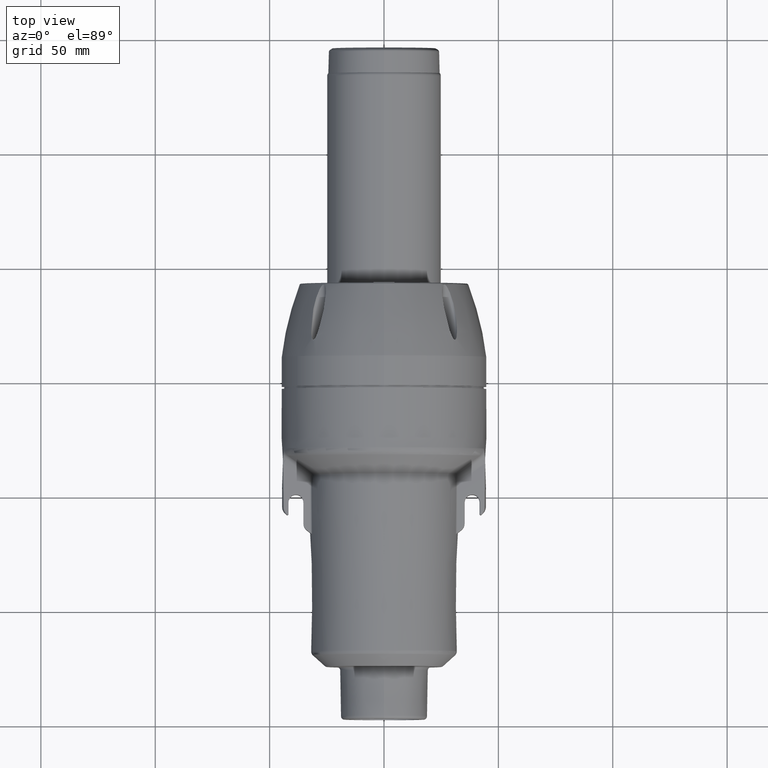
[diagram: clean part render]
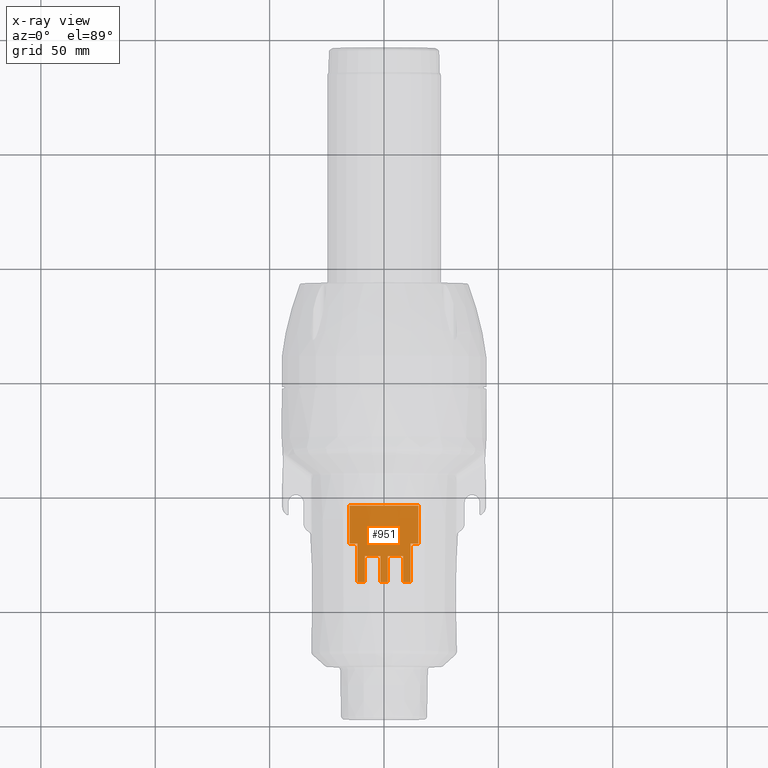
[diagram: x-ray — body ghosted, one internal face saturated and labeled with its STEP entity id]
A machine part, top view, then the same camera in x-ray: the body is ghosted and one INTERNAL B-rep face — a face not visible from any outside direction — is saturated and labeled: STEP entity #951.
In plain terms, the highlighted planar face has unit normal (0, 0, -1).
Its self-contained STEP definition (entity closure, byte-faithful):
#951 = ADVANCED_FACE( '', ( #2759 ), #2760, .F. );
#2759 = FACE_OUTER_BOUND( '', #5583, .T. );
#2760 = PLANE( '', #5584 );
#5583 = EDGE_LOOP( '', ( #13000, #13001, #13002, #13003, #13004, #13005, #13006, #13007, #13008, #13009, #13010, #13011, #13012, #13013, #13014, #13015 ) );
#5584 = AXIS2_PLACEMENT_3D( '', #13016, #13017, #13018 );
#13000 = ORIENTED_EDGE( '', *, *, #21264, .T. );
#13001 = ORIENTED_EDGE( '', *, *, #21265, .T. );
#13002 = ORIENTED_EDGE( '', *, *, #21266, .T. );
#13003 = ORIENTED_EDGE( '', *, *, #21267, .F. );
#13004 = ORIENTED_EDGE( '', *, *, #21268, .T. );
#13005 = ORIENTED_EDGE( '', *, *, #21269, .T. );
#13006 = ORIENTED_EDGE( '', *, *, #21270, .T. );
#13007 = ORIENTED_EDGE( '', *, *, #21271, .F. );
#13008 = ORIENTED_EDGE( '', *, *, #21272, .T. );
#13009 = ORIENTED_EDGE( '', *, *, #21273, .T. );
#13010 = ORIENTED_EDGE( '', *, *, #21274, .T. );
#13011 = ORIENTED_EDGE( '', *, *, #21275, .F. );
#13012 = ORIENTED_EDGE( '', *, *, #21276, .T. );
#13013 = ORIENTED_EDGE( '', *, *, #21277, .F. );
#13014 = ORIENTED_EDGE( '', *, *, #21278, .F. );
#13015 = ORIENTED_EDGE( '', *, *, #21279, .F. );
#13016 = CARTESIAN_POINT( '', ( -15.0000000000010, -66.4999999999880, -28.5499999999874 ) );
#13017 = DIRECTION( '', ( 0.000000000000000, 0.000000000000000, -1.00000000000000 ) );
#13018 = DIRECTION( '', ( 0.000000000000000, -1.00000000000000, 0.000000000000000 ) );
#21264 = EDGE_CURVE( '', #24780, #24781, #24782, .T. );
#21265 = EDGE_CURVE( '', #24781, #24783, #24784, .T. );
#21266 = EDGE_CURVE( '', #24783, #24785, #24786, .T. );
#21267 = EDGE_CURVE( '', #24787, #24785, #24788, .T. );
#21268 = EDGE_CURVE( '', #24787, #24789, #24790, .T. );
#21269 = EDGE_CURVE( '', #24789, #24791, #24792, .T. );
#21270 = EDGE_CURVE( '', #24791, #24793, #24794, .T. );
#21271 = EDGE_CURVE( '', #24795, #24793, #24796, .T. );
#21272 = EDGE_CURVE( '', #24795, #24797, #24798, .T. );
#21273 = EDGE_CURVE( '', #24797, #24799, #24800, .T. );
#21274 = EDGE_CURVE( '', #24799, #24801, #24802, .T. );
#21275 = EDGE_CURVE( '', #24803, #24801, #24804, .T. );
#21276 = EDGE_CURVE( '', #24803, #24805, #24806, .T. );
#21277 = EDGE_CURVE( '', #24807, #24805, #24808, .T. );
#21278 = EDGE_CURVE( '', #24809, #24807, #24810, .T. );
#21279 = EDGE_CURVE( '', #24780, #24809, #24811, .T. );
#24780 = VERTEX_POINT( '', #30278 );
#24781 = VERTEX_POINT( '', #30279 );
#24782 = LINE( '', #30280, #30281 );
#24783 = VERTEX_POINT( '', #30282 );
#24784 = LINE( '', #30283, #30284 );
#24785 = VERTEX_POINT( '', #30285 );
#24786 = LINE( '', #30286, #30287 );
#24787 = VERTEX_POINT( '', #30288 );
#24788 = LINE( '', #30289, #30290 );
#24789 = VERTEX_POINT( '', #30291 );
#24790 = LINE( '', #30292, #30293 );
#24791 = VERTEX_POINT( '', #30294 );
#24792 = LINE( '', #30295, #30296 );
#24793 = VERTEX_POINT( '', #30297 );
#24794 = LINE( '', #30298, #30299 );
#24795 = VERTEX_POINT( '', #30300 );
#24796 = LINE( '', #30301, #30302 );
#24797 = VERTEX_POINT( '', #30303 );
#24798 = LINE( '', #30304, #30305 );
#24799 = VERTEX_POINT( '', #30306 );
#24800 = LINE( '', #30307, #30308 );
#24801 = VERTEX_POINT( '', #30309 );
#24802 = LINE( '', #30310, #30311 );
#24803 = VERTEX_POINT( '', #30312 );
#24804 = LINE( '', #30313, #30314 );
#24805 = VERTEX_POINT( '', #30315 );
#24806 = LINE( '', #30316, #30317 );
#24807 = VERTEX_POINT( '', #30318 );
#24808 = LINE( '', #30319, #30320 );
#24809 = VERTEX_POINT( '', #30321 );
#24810 = LINE( '', #30322, #30323 );
#24811 = LINE( '', #30324, #30325 );
#30278 = CARTESIAN_POINT( '', ( -15.0000000000010, -70.1999999999986, -28.5499999999874 ) );
#30279 = CARTESIAN_POINT( '', ( -11.6499999999585, -70.1999999999986, -28.5499999999874 ) );
#30280 = CARTESIAN_POINT( '', ( -15.0000000000010, -70.1999999999986, -28.5499999999874 ) );
#30281 = VECTOR( '', #39067, 1000.00000000000 );
#30282 = CARTESIAN_POINT( '', ( -11.6499999999585, -87.2000000000068, -28.5499999999874 ) );
#30283 = CARTESIAN_POINT( '', ( -11.6499999999585, -70.1999999999986, -28.5499999999874 ) );
#30284 = VECTOR( '', #39068, 1000.00000000000 );
#30285 = CARTESIAN_POINT( '', ( -8.35000000004026, -87.2000000000068, -28.5499999999874 ) );
#30286 = CARTESIAN_POINT( '', ( -11.6499999999585, -87.2000000000068, -28.5499999999874 ) );
#30287 = VECTOR( '', #39069, 1000.00000000000 );
#30288 = CARTESIAN_POINT( '', ( -8.35000000002502, -75.7000000000380, -28.5499999999970 ) );
#30289 = CARTESIAN_POINT( '', ( -8.35000000005042, -75.7000000000020, -28.5499999999874 ) );
#30290 = VECTOR( '', #39070, 1000.00000000000 );
#30291 = CARTESIAN_POINT( '', ( -1.64999999997524, -75.7000000000380, -28.5499999999970 ) );
#30292 = CARTESIAN_POINT( '', ( -8.35000000005042, -75.7000000000020, -28.5499999999874 ) );
#30293 = VECTOR( '', #39071, 1000.00000000000 );
#30294 = CARTESIAN_POINT( '', ( -1.64999999995936, -87.2000000000068, -28.5499999999874 ) );
#30295 = CARTESIAN_POINT( '', ( -1.64999999995047, -75.7000000000020, -28.5499999999874 ) );
#30296 = VECTOR( '', #39072, 1000.00000000000 );
#30297 = CARTESIAN_POINT( '', ( 1.64999999995936, -87.2000000000068, -28.5499999999874 ) );
#30298 = CARTESIAN_POINT( '', ( -1.64999999995936, -87.2000000000068, -28.5499999999874 ) );
#30299 = VECTOR( '', #39073, 1000.00000000000 );
#30300 = CARTESIAN_POINT( '', ( 1.64999999997524, -75.7000000000380, -28.5499999999970 ) );
#30301 = CARTESIAN_POINT( '', ( 1.64999999995047, -75.7000000000020, -28.5499999999874 ) );
#30302 = VECTOR( '', #39074, 1000.00000000000 );
#30303 = CARTESIAN_POINT( '', ( 8.35000000002502, -75.7000000000380, -28.5499999999970 ) );
#30304 = CARTESIAN_POINT( '', ( 1.64999999995047, -75.7000000000020, -28.5499999999874 ) );
#30305 = VECTOR( '', #39075, 1000.00000000000 );
#30306 = CARTESIAN_POINT( '', ( 8.35000000004026, -87.2000000000068, -28.5499999999874 ) );
#30307 = CARTESIAN_POINT( '', ( 8.35000000005042, -75.7000000000020, -28.5499999999874 ) );
#30308 = VECTOR( '', #39076, 1000.00000000000 );
#30309 = CARTESIAN_POINT( '', ( 11.6499999999585, -87.2000000000068, -28.5499999999874 ) );
#30310 = CARTESIAN_POINT( '', ( 8.35000000004026, -87.2000000000068, -28.5499999999874 ) );
#30311 = VECTOR( '', #39077, 1000.00000000000 );
#30312 = CARTESIAN_POINT( '', ( 11.6499999999585, -70.1999999999986, -28.5499999999874 ) );
#30313 = CARTESIAN_POINT( '', ( 11.6499999999585, -70.1999999999986, -28.5499999999874 ) );
#30314 = VECTOR( '', #39078, 1000.00000000000 );
#30315 = CARTESIAN_POINT( '', ( 15.0000000000010, -70.1999999999986, -28.5499999999874 ) );
#30316 = CARTESIAN_POINT( '', ( 11.6499999999585, -70.1999999999986, -28.5499999999874 ) );
#30317 = VECTOR( '', #39079, 1000.00000000000 );
#30318 = CARTESIAN_POINT( '', ( 15.0000000000010, -53.6999999999884, -28.5499999999874 ) );
#30319 = CARTESIAN_POINT( '', ( 15.0000000000010, -53.6999999999884, -28.5499999999874 ) );
#30320 = VECTOR( '', #39080, 1000.00000000000 );
#30321 = CARTESIAN_POINT( '', ( -15.0000000000010, -53.6999999999884, -28.5499999999874 ) );
#30322 = CARTESIAN_POINT( '', ( -15.0000000000010, -53.6999999999884, -28.5499999999874 ) );
#30323 = VECTOR( '', #39081, 1000.00000000000 );
#30324 = CARTESIAN_POINT( '', ( -15.0000000000010, -70.1999999999986, -28.5499999999874 ) );
#30325 = VECTOR( '', #39082, 1000.00000000000 );
#39067 = DIRECTION( '', ( 1.00000000000000, 0.000000000000000, 0.000000000000000 ) );
#39068 = DIRECTION( '', ( 0.000000000000000, -1.00000000000000, 0.000000000000000 ) );
#39069 = DIRECTION( '', ( 1.00000000000000, 0.000000000000000, 0.000000000000000 ) );
#39070 = DIRECTION( '', ( 7.75858604415500E-013, -1.00000000000000, 0.000000000000000 ) );
#39071 = DIRECTION( '', ( 1.00000000000000, 0.000000000000000, 0.000000000000000 ) );
#39072 = DIRECTION( '', ( -7.74540576603000E-013, -1.00000000000000, 0.000000000000000 ) );
#39073 = DIRECTION( '', ( 1.00000000000000, 0.000000000000000, 0.000000000000000 ) );
#39074 = DIRECTION( '', ( 7.75766648986700E-013, -1.00000000000000, 0.000000000000000 ) );
#39075 = DIRECTION( '', ( 1.00000000000000, 0.000000000000000, 0.000000000000000 ) );
#39076 = DIRECTION( '', ( -7.74509924793400E-013, -1.00000000000000, 0.000000000000000 ) );
#39077 = DIRECTION( '', ( 1.00000000000000, 0.000000000000000, 0.000000000000000 ) );
#39078 = DIRECTION( '', ( 0.000000000000000, -1.00000000000000, 0.000000000000000 ) );
#39079 = DIRECTION( '', ( 1.00000000000000, 0.000000000000000, 0.000000000000000 ) );
#39080 = DIRECTION( '', ( 0.000000000000000, -1.00000000000000, 0.000000000000000 ) );
#39081 = DIRECTION( '', ( 1.00000000000000, 0.000000000000000, 0.000000000000000 ) );
#39082 = DIRECTION( '', ( 0.000000000000000, 1.00000000000000, 0.000000000000000 ) );